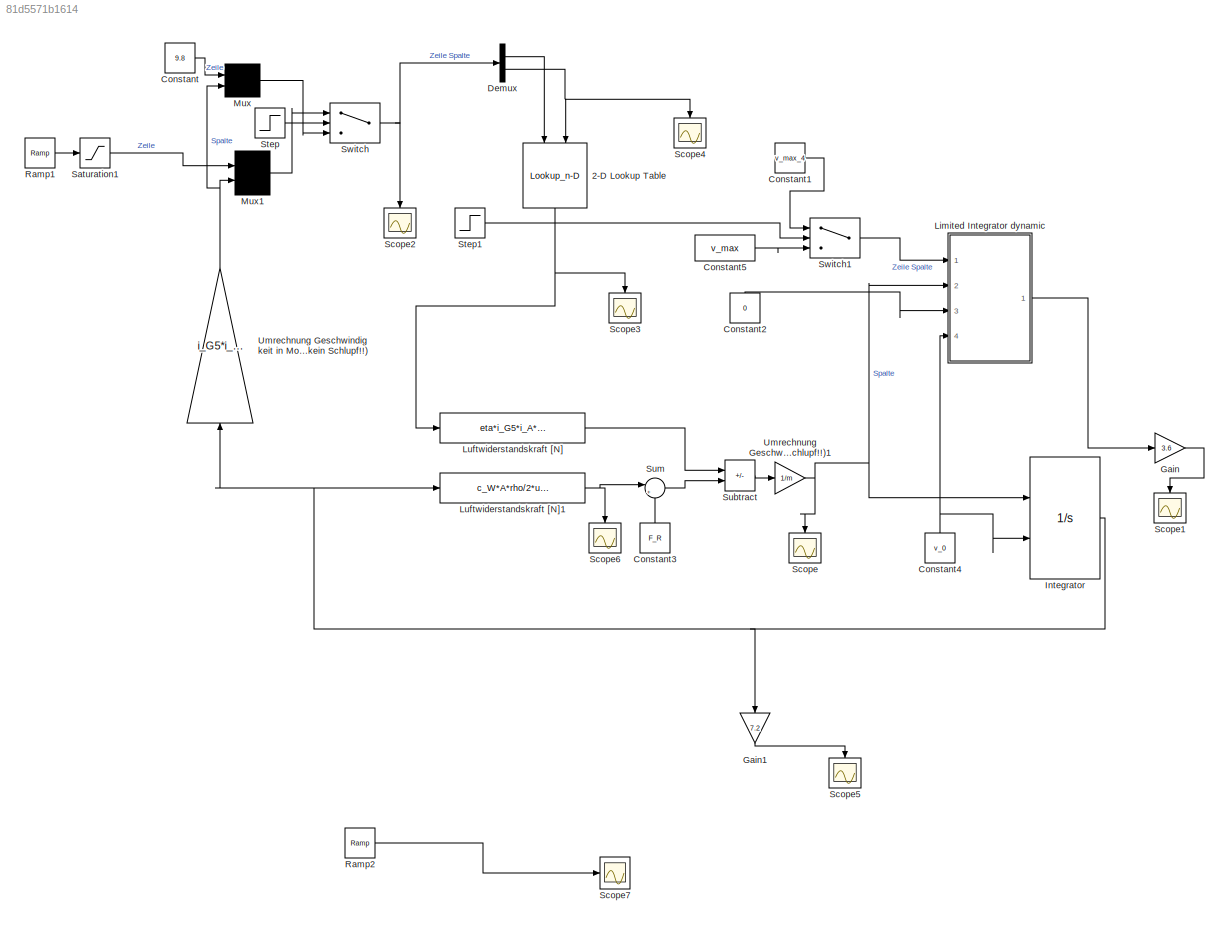
MODEL slx_81d5571b1614
KIND model
CONFIG AbsTol = auto
CONFIG EnableMultiTasking = off
CONFIG FixedStep = auto
CONFIG MaxStep = auto
CONFIG MinStep = auto
CONFIG RelTol = 1e-3
CONFIG SampleTimeConstraint = Unconstrained
CONFIG SolverName = VariableStepAuto
CONFIG StartTime = 0.0
CONFIG StopTime = 20
BLOCK [Lookup_n-D] 2-D Lookup Table
  BreakpointsForDimension1 = KF_Motor(2:end,1)
  BreakpointsForDimension2 = KF_Motor(1,2:end)
  InputPortMap = u0,u1
  InternalRulePriority = Speed
  NameLocation = left
  Ports = [2, 1]
  RndMeth = Simplest
  Table = KF_Motor(2:end,2:end)
BLOCK [Constant] Constant
  Value = 9.8
BLOCK [Constant] Constant1
  Value = v_max_4
BLOCK [Constant] Constant2
  NameLocation = right
  Value = 0
BLOCK [Constant] Constant3
  NameLocation = right
  Value = F_R
BLOCK [Constant] Constant4
  NameLocation = right
  Value = v_0
BLOCK [Constant] Constant5
  Value = v_max
BLOCK [Demux] Demux
  Outputs = 2
  Ports = [1, 2]
BLOCK [Gain] Gain
  Gain = 3.6
BLOCK [Gain] Gain1
  Gain = 7.2
  NameLocation = left
BLOCK [Integrator] Integrator
  InitialConditionSource = external
  LimitOutput = on
  Ports = [2, 1]
  UpperSaturationLimit = v_max
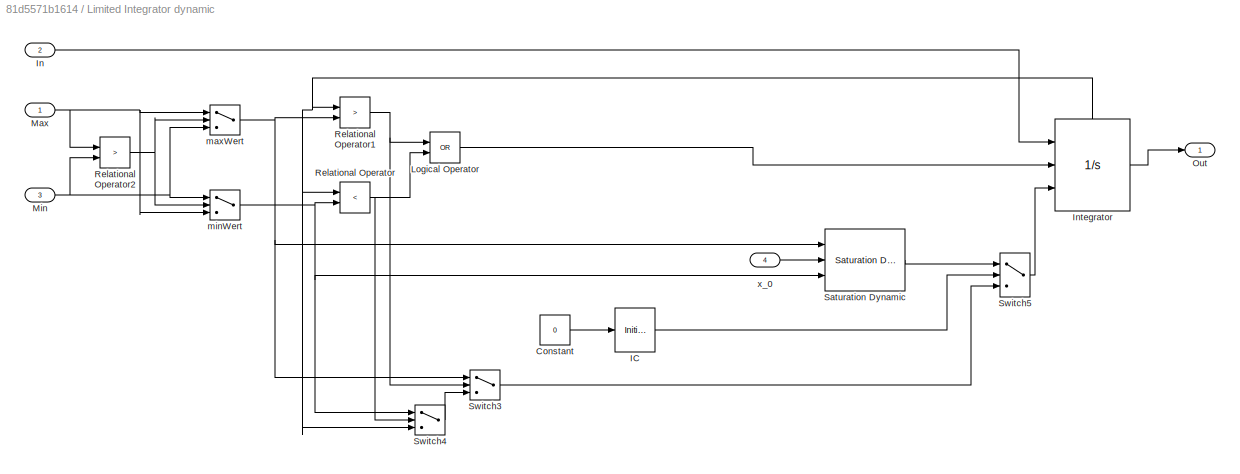
BLOCK [SubSystem] Limited Integrator dynamic
  Ports = [4, 1]
  RequestExecContextInheritance = off
BLOCK [Constant] Limited Integrator dynamic/Constant
  Value = 0
BLOCK [InitialCondition] Limited Integrator dynamic/IC
BLOCK [Inport] Limited Integrator dynamic/In
  Port = 2
BLOCK [Integrator] Limited Integrator dynamic/Integrator
  ExternalReset = level
  InitialConditionSource = external
  Ports = [3, 1, 0, 0, 1]
  ShowStatePort = on
BLOCK [Logic] Limited Integrator dynamic/Logical Operator
  AllPortsSameDT = off
  Operator = OR
  OutDataTypeStr = boolean
  Ports = [2, 1]
BLOCK [Inport] Limited Integrator dynamic/Max
BLOCK [Inport] Limited Integrator dynamic/Min
  Port = 3
BLOCK [Outport] Limited Integrator dynamic/Out
BLOCK [RelationalOperator] Limited Integrator dynamic/Relational Operator
  InputSameDT = off
  Operator = <
  OutDataTypeStr = boolean
  Ports = [2, 1]
BLOCK [RelationalOperator] Limited Integrator dynamic/Relational Operator1
  InputSameDT = off
  Operator = >
  OutDataTypeStr = boolean
  Ports = [2, 1]
BLOCK [RelationalOperator] Limited Integrator dynamic/Relational Operator2
  InputSameDT = off
  Operator = >
  OutDataTypeStr = boolean
  Ports = [2, 1]
BLOCK [Reference] Limited Integrator dynamic/Saturation Dynamic  REF=simulink/Discontinuities/Saturation
Dynamic
  Ports = [3, 1]
  SourceBlock = simulink/Discontinuities/Saturation\nDynamic
  SourceProductBaseCode = SL
  SourceType = Saturation Dynamic
BLOCK [Switch] Limited Integrator dynamic/Switch3
  Criteria = u2 ~= 0
  InputSameDT = off
  SaturateOnIntegerOverflow = off
BLOCK [Switch] Limited Integrator dynamic/Switch4
  Criteria = u2 ~= 0
  InputSameDT = off
  SaturateOnIntegerOverflow = off
BLOCK [Switch] Limited Integrator dynamic/Switch5
  Criteria = u2 ~= 0
  InputSameDT = off
  SaturateOnIntegerOverflow = off
BLOCK [Switch] Limited Integrator dynamic/maxWert
  Criteria = u2 ~= 0
  InputSameDT = off
  SaturateOnIntegerOverflow = off
BLOCK [Switch] Limited Integrator dynamic/minWert
  Criteria = u2 ~= 0
  InputSameDT = off
  SaturateOnIntegerOverflow = off
BLOCK [Inport] Limited Integrator dynamic/x_0
  Port = 4
BLOCK [Fcn] Luftwiderstandskraft [N]
  Expr = eta*i_G5*i_A*u*1/r_R
BLOCK [Fcn] Luftwiderstandskraft [N]1
  Expr = c_W*A*rho/2*u^2
BLOCK [Mux] Mux
  DisplayOption = signals
  Inputs = 2
  Ports = [2, 1]
BLOCK [Mux] Mux1
  DisplayOption = signals
  Inputs = 2
  Ports = [2, 1]
BLOCK [Reference] Ramp1  REF=simulink/Sources/Ramp
  Ports = [0, 1]
  SourceBlock = simulink/Sources/Ramp
  SourceProductBaseCode = SL
  SourceType = Ramp
BLOCK [Reference] Ramp2  REF=simulink/Sources/Ramp
  Ports = [0, 1]
  SourceBlock = simulink/Sources/Ramp
  SourceProductBaseCode = SL
  SourceType = Ramp
BLOCK [Saturate] Saturation1
  LowerLimit = 9.8
  UpperLimit = 90
BLOCK [Scope] Scope
  Floating = off
  NameLocation = left
  NumInputPorts = 1
  Ports = [1]
  ScopeSpecificationString = Simulink.scopes.TimeScopeBlockCfg('CurrentConfiguration', extmgr.ConfigurationSet(extmgr.Configuration('Core','General UI',true),extmgr.Configuration('Core','Source UI',true),extmgr.Configuration('Sources','WiredSimulink',true),extmgr.Configuration('Visuals','Time Domain',true,'SerializedDisplays',{struct('MinYLimReal','-0.02261','MaxYLimReal','1.96323','YLabelReal','','MinYLimMag','0.00000','MaxY...<+1345ch>
BLOCK [Scope] Scope1
  Floating = off
  NameLocation = left
  NumInputPorts = 1
  Ports = [1]
  ScopeSpecificationString = Simulink.scopes.TimeScopeBlockCfg('CurrentConfiguration', extmgr.ConfigurationSet(extmgr.Configuration('Core','General UI',true),extmgr.Configuration('Core','Source UI',true),extmgr.Configuration('Sources','WiredSimulink',true,'DataLoggingVariableName','ScopeData1'),extmgr.Configuration('Visuals','Time Domain',true,'SerializedDisplays',{struct('MinYLimReal','57.04553','MaxYLimReal','86.59026','YLa...<+1442ch>  <repeated x3 — deduplicated; at blocks: Scope1, Scope5, Scope7>
BLOCK [Scope] Scope2
  Floating = off
  NameLocation = left
  NumInputPorts = 1
  Ports = [1]
  ScopeSpecificationString = Simulink.scopes.TimeScopeBlockCfg('CurrentConfiguration', extmgr.ConfigurationSet(extmgr.Configuration('Core','General UI',true),extmgr.Configuration('Core','Source UI',true),extmgr.Configuration('Sources','WiredSimulink',true,'DataLoggingVariableName','ScopeData2'),extmgr.Configuration('Visuals','Time Domain',true,'SerializedDisplays',{struct('MinYLimReal','-801.475','MaxYLimReal','7311.275','YLa...<+1415ch>
BLOCK [Scope] Scope3
  Floating = off
  NameLocation = left
  NumInputPorts = 1
  Ports = [1]
  ScopeSpecificationString = Simulink.scopes.TimeScopeBlockCfg('CurrentConfiguration', extmgr.ConfigurationSet(extmgr.Configuration('Core','General UI',true),extmgr.Configuration('Core','Source UI',true),extmgr.Configuration('Sources','WiredSimulink',true,'DataLoggingVariableName','ScopeData3'),extmgr.Configuration('Visuals','Time Domain',true,'SerializedDisplays',{struct('MinYLimReal','-5.1799','MaxYLimReal','222.61906','YLa...<+1464ch>
BLOCK [Scope] Scope4
  Floating = off
  NameLocation = left
  NumInputPorts = 1
  Ports = [1]
  ScopeSpecificationString = Simulink.scopes.TimeScopeBlockCfg('CurrentConfiguration', extmgr.ConfigurationSet(extmgr.Configuration('Core','General UI',true),extmgr.Configuration('Core','Source UI',true),extmgr.Configuration('Sources','WiredSimulink',true,'DataLoggingVariableName','ScopeData4'),extmgr.Configuration('Visuals','Time Domain',true,'SerializedDisplays',{struct('MinYLimReal','3954.18213','MaxYLimReal','4042.83064',...<+1471ch>
BLOCK [Scope] Scope5
  Floating = off
  NameLocation = left
  NumInputPorts = 1
  Ports = [1]
BLOCK [Scope] Scope6
  Floating = off
  NameLocation = left
  NumInputPorts = 1
  Ports = [1]
  ScopeSpecificationString = Simulink.scopes.TimeScopeBlockCfg('CurrentConfiguration', extmgr.ConfigurationSet(extmgr.Configuration('Core','General UI',true),extmgr.Configuration('Core','Source UI',true),extmgr.Configuration('Sources','WiredSimulink',true,'DataLoggingVariableName','ScopeData6'),extmgr.Configuration('Visuals','Time Domain',true,'SerializedDisplays',{struct('MinYLimReal','44.5366','MaxYLimReal','505.83727','YLa...<+1419ch>
BLOCK [Scope] Scope7
  Floating = off
  NumInputPorts = 1
  Ports = [1]
BLOCK [Step] Step
  SampleTime = 0
  Time = 3
BLOCK [Step] Step1
  SampleTime = 0
  Time = 5
BLOCK [Sum] Subtract
  IconShape = rectangular
  Inputs = +-
  Ports = [2, 1]
BLOCK [Sum] Sum
  Inputs = |++
  Ports = [2, 1]
BLOCK [Switch] Switch
  InputSameDT = off
  SaturateOnIntegerOverflow = off
  Threshold = 1
BLOCK [Switch] Switch1
  InputSameDT = off
  SaturateOnIntegerOverflow = off
  Threshold = 1
BLOCK [Gain] Umrechnung Geschwindigkeit in Motordrehzahl (kein Schlupf!!)
  Gain = i_G5*i_A*60/(2*pi*r_R)
  NameLocation = left
BLOCK [Gain] Umrechnung Geschwindigkeit in Motordrehzahl (kein Schlupf!!)1
  Gain = 1/m
  NameLocation = top
NET 2-D Lookup Table:1 -> Luftwiderstandskraft [N]:1, Scope3:1
LINE Constant1:1 -> Switch1:1
LINE Constant2:1 -> Limited Integrator dynamic:3
LINE Constant3:1 -> Sum:2
NET Constant4:1 -> Integrator:2, Limited Integrator dynamic:4
LINE Constant5:1 -> Switch1:3
LINE Constant:1 -> Mux:1
LINE Demux:1 -> 2-D Lookup Table:1
NET Demux:2 -> 2-D Lookup Table:2, Scope4:1
LINE Gain1:1 -> Scope5:1
LINE Gain:1 -> Scope1:1
NET Integrator:1 -> Gain1:1, Luftwiderstandskraft [N]1:1, Umrechnung Geschwindigkeit in Motordrehzahl (kein Schlupf!!):1
LINE Limited Integrator dynamic/Constant:1 -> Limited Integrator dynamic/IC:1
LINE Limited Integrator dynamic/IC:1 -> Limited Integrator dynamic/Switch5:2
LINE Limited Integrator dynamic/In:1 -> Limited Integrator dynamic/Integrator:1
LINE Limited Integrator dynamic/Integrator:1 -> Limited Integrator dynamic/Out:1
NET Limited Integrator dynamic/Integrator:state -> Limited Integrator dynamic/Relational Operator1:1, Limited Integrator dynamic/Relational Operator:1, Limited Integrator dynamic/Switch4:3
LINE Limited Integrator dynamic/Logical Operator:1 -> Limited Integrator dynamic/Integrator:2
NET Limited Integrator dynamic/Max:1 -> Limited Integrator dynamic/Relational Operator2:1, Limited Integrator dynamic/maxWert:1, Limited Integrator dynamic/minWert:3
NET Limited Integrator dynamic/Min:1 -> Limited Integrator dynamic/Relational Operator2:2, Limited Integrator dynamic/maxWert:3, Limited Integrator dynamic/minWert:1
NET Limited Integrator dynamic/Relational Operator1:1 -> Limited Integrator dynamic/Logical Operator:1, Limited Integrator dynamic/Switch3:2
NET Limited Integrator dynamic/Relational Operator2:1 -> Limited Integrator dynamic/maxWert:2, Limited Integrator dynamic/minWert:2
NET Limited Integrator dynamic/Relational Operator:1 -> Limited Integrator dynamic/Logical Operator:2, Limited Integrator dynamic/Switch4:2
LINE Limited Integrator dynamic/Saturation Dynamic:1 -> Limited Integrator dynamic/Switch5:1
LINE Limited Integrator dynamic/Switch3:1 -> Limited Integrator dynamic/Switch5:3
LINE Limited Integrator dynamic/Switch4:1 -> Limited Integrator dynamic/Switch3:3
LINE Limited Integrator dynamic/Switch5:1 -> Limited Integrator dynamic/Integrator:3
NET Limited Integrator dynamic/maxWert:1 -> Limited Integrator dynamic/Relational Operator1:2, Limited Integrator dynamic/Saturation Dynamic:1, Limited Integrator dynamic/Switch3:1
NET Limited Integrator dynamic/minWert:1 -> Limited Integrator dynamic/Relational Operator:2, Limited Integrator dynamic/Saturation Dynamic:3, Limited Integrator dynamic/Switch4:1
LINE Limited Integrator dynamic/x_0:1 -> Limited Integrator dynamic/Saturation Dynamic:2
LINE Limited Integrator dynamic:1 -> Gain:1
NET Luftwiderstandskraft [N]1:1 -> Scope6:1, Sum:1
LINE Luftwiderstandskraft [N]:1 -> Subtract:1
LINE Mux1:1 -> Switch:1
LINE Mux:1 -> Switch:3
LINE Ramp1:1 -> Saturation1:1
LINE Ramp2:1 -> Scope7:1
LINE Saturation1:1 -> Mux1:1
LINE Step1:1 -> Switch1:2
LINE Step:1 -> Switch:2
LINE Subtract:1 -> Umrechnung Geschwindigkeit in Motordrehzahl (kein Schlupf!!)1:1
LINE Sum:1 -> Subtract:2
LINE Switch1:1 -> Limited Integrator dynamic:1
NET Switch:1 -> Demux:1, Scope2:1
NET Umrechnung Geschwindigkeit in Motordrehzahl (kein Schlupf!!)1:1 -> Integrator:1, Limited Integrator dynamic:2, Scope:1
NET Umrechnung Geschwindigkeit in Motordrehzahl (kein Schlupf!!):1 -> Mux1:2, Mux:2
note: NET lines group one-source signal fan-out (src -> all destinations, sorted); 1:1 wires keep LINE
